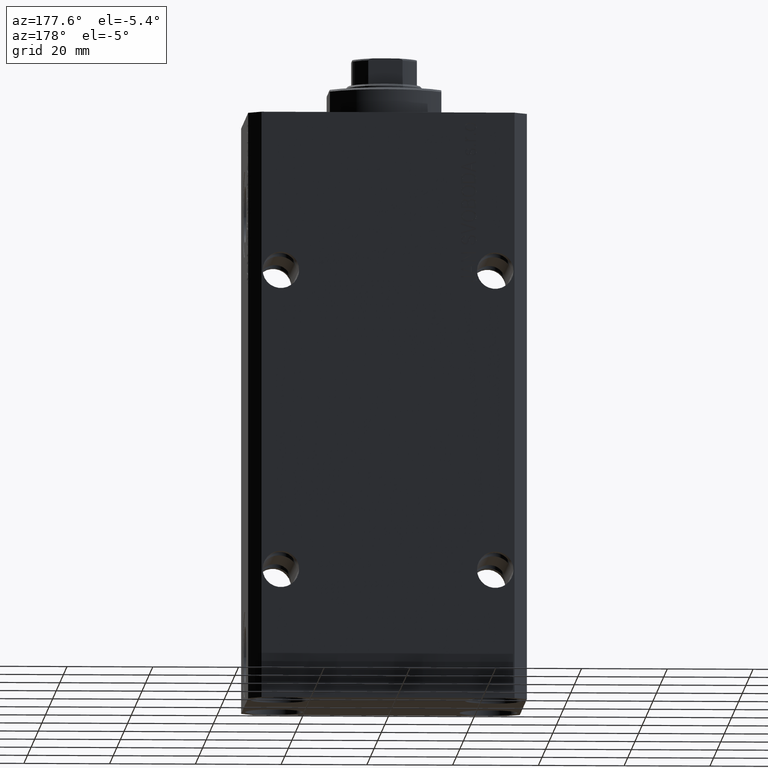
[diagram: clean part render]
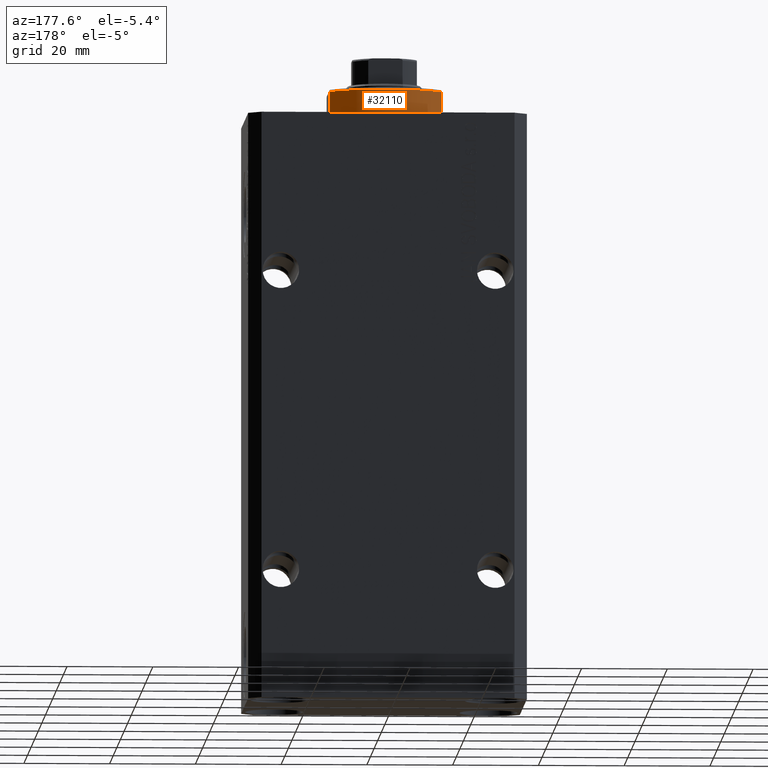
[diagram: same view with one face highlighted and labeled with its STEP entity id]
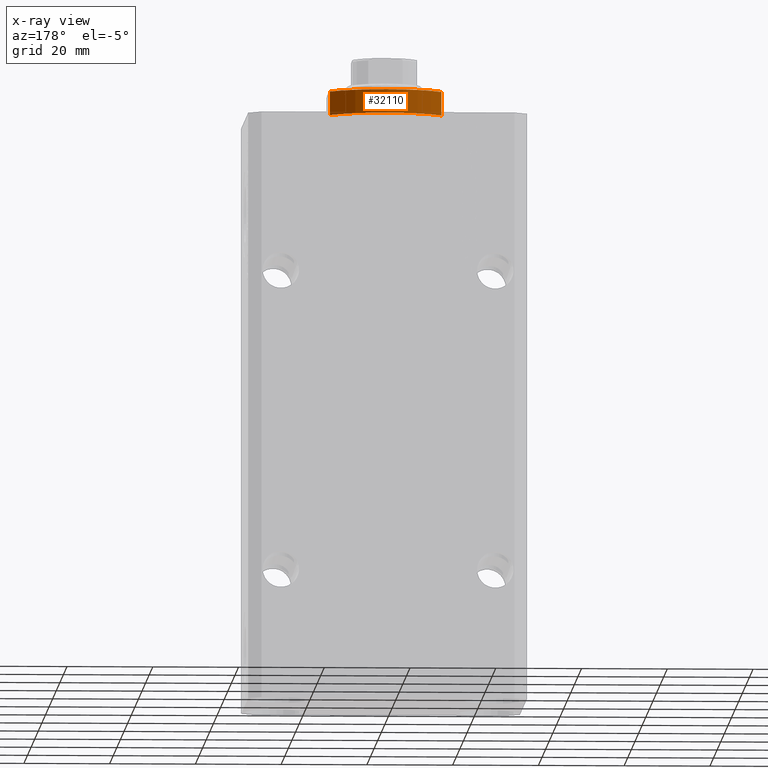
[diagram: x-ray of the same camera — body ghosted, the highlighted face saturated]
A machine part, auxiliary view. The second image highlights one B-rep face of the part: STEP entity #32110.
The next image is the same camera in x-ray: the body ghosted, the highlighted face saturated — about 0% of this face is hidden behind the body in this view.
In plain terms, the highlighted cylindrical surface (partial cylindrical patch) has radius 16 mm, axis along (0, 0, -1).
Its self-contained STEP definition (entity closure, byte-faithful):
#1297 = DIRECTION ( 'NONE',  ( 1.000000000000000000, -8.881784197001252323E-16, 0.000000000000000000 ) ) ;
#1885 = AXIS2_PLACEMENT_3D ( 'NONE', #36695, #33236, #1297 ) ;
#1930 = DIRECTION ( 'NONE',  ( -0.000000000000000000, -0.000000000000000000, 1.000000000000000000 ) ) ;
#5602 = VECTOR ( 'NONE', #1930, 1000.000000000000000 ) ;
#6721 = VERTEX_POINT ( 'NONE', #31239 ) ;
#6807 = DIRECTION ( 'NONE',  ( 1.000000000000000000, 0.000000000000000000, 0.000000000000000000 ) ) ;
#7242 = CARTESIAN_POINT ( 'NONE',  ( 0.000000000000000000, 0.000000000000000000, -6.000000000000023981 ) ) ;
#8369 = CARTESIAN_POINT ( 'NONE',  ( -13.00000000000000000, 9.327379053088813876, -6.500000000000000000 ) ) ;
#8436 = ORIENTED_EDGE ( 'NONE', *, *, #39599, .T. ) ;
#9295 = VERTEX_POINT ( 'NONE', #17420 ) ;
#11824 = VECTOR ( 'NONE', #26694, 1000.000000000000000 ) ;
#13679 = ORIENTED_EDGE ( 'NONE', *, *, #20945, .T. ) ;
#14148 = CYLINDRICAL_SURFACE ( 'NONE', #29402, 16.00000000000000000 ) ;
#16124 = CARTESIAN_POINT ( 'NONE',  ( 13.00000000000000000, 9.327379053088813876, -6.500000000000000000 ) ) ;
#16922 = FACE_OUTER_BOUND ( 'NONE', #38181, .T. ) ;
#17420 = CARTESIAN_POINT ( 'NONE',  ( -13.00000000000000000, 9.327379053088815652, -0.4999999999999995559 ) ) ;
#18460 = EDGE_CURVE ( 'NONE', #6721, #9295, #40323, .T. ) ;
#20945 = EDGE_CURVE ( 'NONE', #9295, #36230, #21702, .T. ) ;
#21252 = DIRECTION ( 'NONE',  ( 0.000000000000000000, 0.000000000000000000, 1.000000000000000000 ) ) ;
#21702 = CIRCLE ( 'NONE', #1885, 16.00000000000000000 ) ;
#24722 = CARTESIAN_POINT ( 'NONE',  ( 0.000000000000000000, 0.000000000000000000, -6.500000000000000000 ) ) ;
#26694 = DIRECTION ( 'NONE',  ( -0.000000000000000000, -0.000000000000000000, 1.000000000000000000 ) ) ;
#29402 = AXIS2_PLACEMENT_3D ( 'NONE', #24722, #38301, #6807 ) ;
#30593 = ORIENTED_EDGE ( 'NONE', *, *, #33791, .F. ) ;
#31217 = VERTEX_POINT ( 'NONE', #31844 ) ;
#31239 = CARTESIAN_POINT ( 'NONE',  ( -13.00000000000000000, 9.327379053088916905, -6.000000000000014211 ) ) ;
#31844 = CARTESIAN_POINT ( 'NONE',  ( 13.00000000000000000, 9.327379053088916905, -6.000000000000014211 ) ) ;
#32110 = ADVANCED_FACE ( 'NONE', ( #16922 ), #14148, .T. ) ;
#32286 = DIRECTION ( 'NONE',  ( -1.000000000000000000, 0.000000000000000000, 0.000000000000000000 ) ) ;
#33236 = DIRECTION ( 'NONE',  ( -0.000000000000000000, -0.000000000000000000, -1.000000000000000000 ) ) ;
#33791 = EDGE_CURVE ( 'NONE', #31217, #36230, #40733, .T. ) ;
#35340 = CARTESIAN_POINT ( 'NONE',  ( 13.00000000000000000, 9.327379053088815652, -0.4999999999999995559 ) ) ;
#36230 = VERTEX_POINT ( 'NONE', #35340 ) ;
#36537 = CIRCLE ( 'NONE', #45449, 16.00000000000000000 ) ;
#36695 = CARTESIAN_POINT ( 'NONE',  ( 0.000000000000000000, 0.000000000000000000, -0.4999999999999995559 ) ) ;
#38181 = EDGE_LOOP ( 'NONE', ( #30593, #8436, #38323, #13679 ) ) ;
#38301 = DIRECTION ( 'NONE',  ( -0.000000000000000000, -0.000000000000000000, 1.000000000000000000 ) ) ;
#38323 = ORIENTED_EDGE ( 'NONE', *, *, #18460, .T. ) ;
#39599 = EDGE_CURVE ( 'NONE', #31217, #6721, #36537, .T. ) ;
#40323 = LINE ( 'NONE', #8369, #5602 ) ;
#40733 = LINE ( 'NONE', #16124, #11824 ) ;
#45449 = AXIS2_PLACEMENT_3D ( 'NONE', #7242, #21252, #32286 ) ;